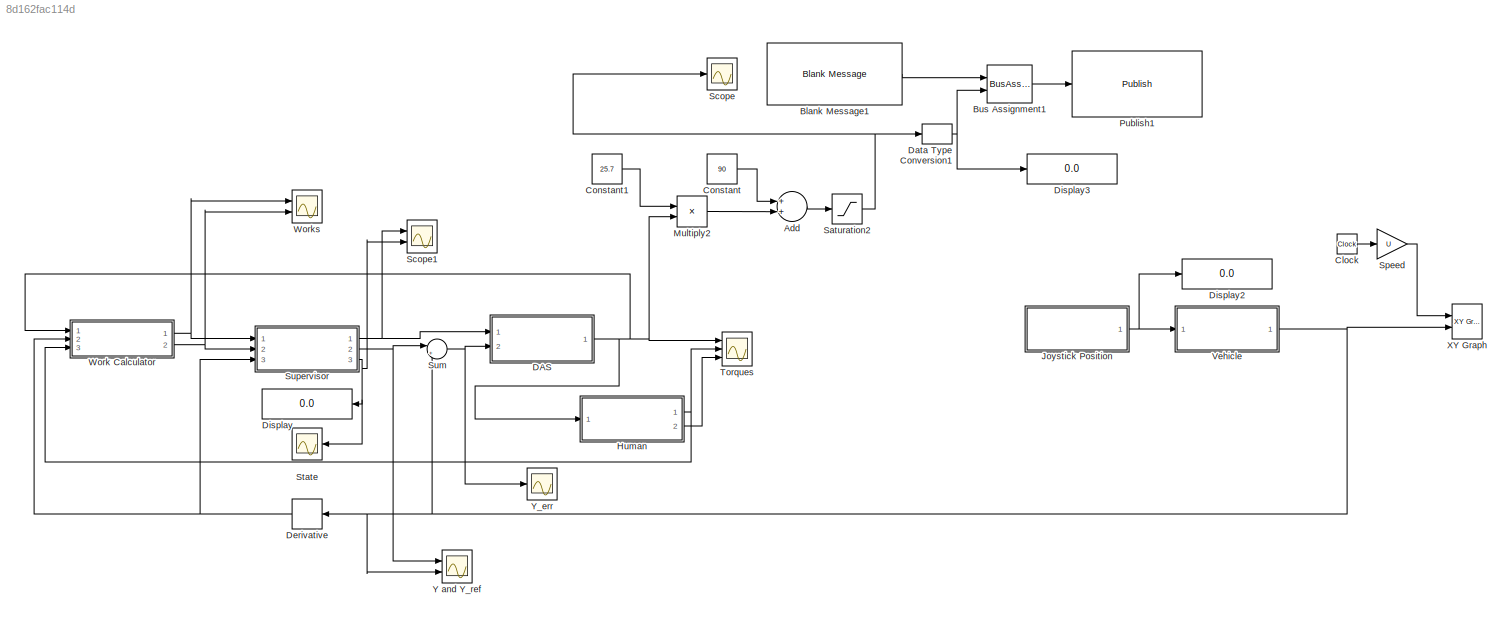
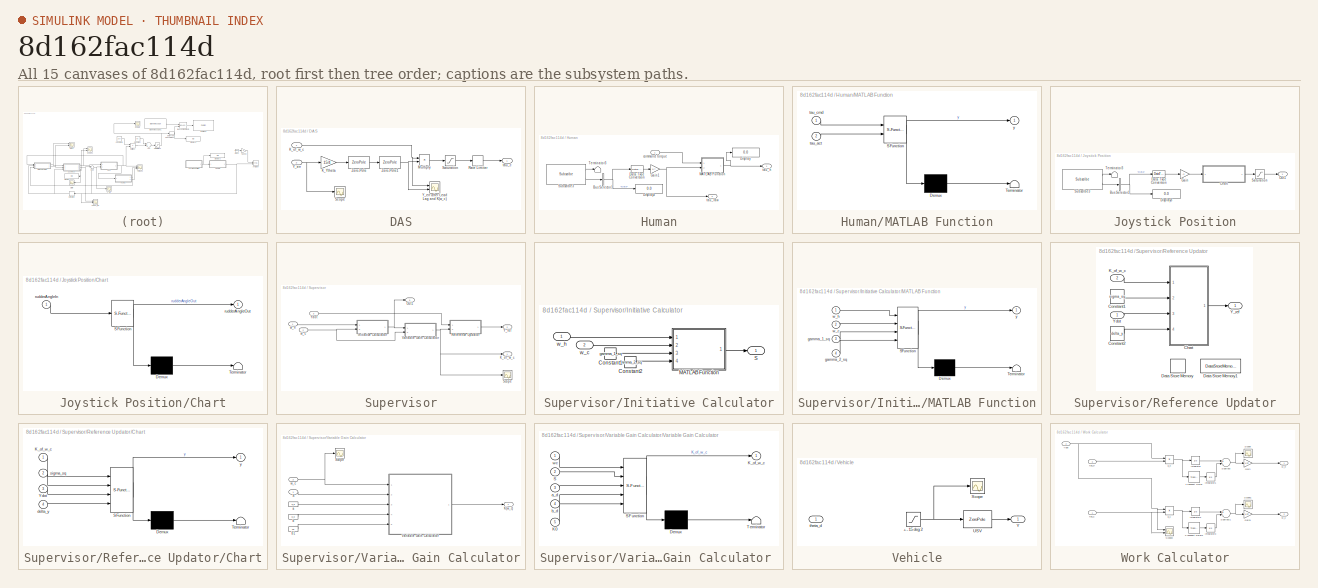
[diagram: thumbnail index - all 15 canvases of the model, root first then tree order]
MODEL slx_8d162fac114d
KIND model
CONFIG AbsTol = auto
CONFIG EnableMultiTasking = off
CONFIG FixedStep = .1
CONFIG MaxStep = auto
CONFIG MinStep = auto
CONFIG RelTol = 1e-3
CONFIG SampleTimeConstraint = Unconstrained
CONFIG Solver = FixedStepAuto
CONFIG SolverName = FixedStepAuto
CONFIG StartTime = 0.0
CONFIG StopTime = 200
BLOCK [Sum] Add
  InputSameDT = off
  OutDataTypeStr = Inherit: Inherit via internal rule
  Ports = [2, 1]
  SaturateOnIntegerOverflow = off
BLOCK [Reference] Blank Message1  REF=robotlib/Blank Message
  Ports = [0, 1]
  SourceBlock = robotlib/Blank Message
  SourceLibraryInfo = This block requires Robotics System Toolbox
  SourceProductBaseCode = RO
  SourceProductName = Robotics System Toolbox
  SourceType = ROS Blank Message
BLOCK [BusAssignment] Bus Assignment1
  AssignedSignals = Data
  Ports = [2, 1]
BLOCK [Clock] Clock
BLOCK [Constant] Constant
  Value = 90
BLOCK [Constant] Constant1
  Value = 25.7
BLOCK [SubSystem] DAS
  Ports = [2, 1]
  RequestExecContextInheritance = off
BLOCK [Gain] DAS/K_Ytheta
  Gain = 15/4
  OutDataTypeStr = Inherit: Inherit via internal rule
  ParamDataTypeStr = Inherit: Inherit via internal rule
  SaturateOnIntegerOverflow = off
BLOCK [Inport] DAS/K_of_w_c 
  IconDisplay = Port number
BLOCK [Product] DAS/Multiply
  InputSameDT = off
  OutDataTypeStr = Inherit: Inherit via internal rule
  Ports = [2, 1]
  RndMeth = Floor
  SaturateOnIntegerOverflow = off
BLOCK [RateLimiter] DAS/Rate Limiter
  FallingSlewLimit = -3
  RisingSlewLimit = 3
  SampleTimeMode = inherited
BLOCK [Saturate] DAS/Saturation
  InputPortMap = u0
  LowerLimit = -5
  Ports = [1, 1]
  UpperLimit = 5
BLOCK [Scope] DAS/Scope
  Floating = off
  NumInputPorts = 1
  Ports = [1]
  ScopeSpecificationString = Simulink.scopes.TimeScopeBlockCfg('CurrentConfiguration', extmgr.ConfigurationSet(extmgr.Configuration('Core','General UI',true),extmgr.Configuration('Core','Source UI',true),extmgr.Configuration('Sources','WiredSimulink',true,'DataLoggingVariableName','ScopeData3'),extmgr.Configuration('Visuals','Time Domain',true,'SerializedDisplays',{struct('MinYLimReal','-0.0666','MaxYLimReal','0.0074','YLabel...<+1409ch>
BLOCK [Inport] DAS/Y_err
  IconDisplay = Port number
  Port = 2
BLOCK [Scope] DAS/Y_err after Lead Lag and K(w_c)
  Floating = off
  NumInputPorts = 2
  Ports = [2]
  ScopeSpecificationString = Simulink.scopes.TimeScopeBlockCfg('CurrentConfiguration', extmgr.ConfigurationSet(extmgr.Configuration('Core','General UI',true),extmgr.Configuration('Core','Source UI',true),extmgr.Configuration('Sources','WiredSimulink',true,'DataLoggingVariableName','ScopeData2'),extmgr.Configuration('Visuals','Time Domain',true,'SerializedDisplays',{struct('MinYLimReal','-1489.32398','MaxYLimReal','3539.7484',...<+1470ch>
BLOCK [ZeroPole] DAS/Zero-Pole
  Gain = [K0]
  Poles = [-a]
  Zeros = [-b]
BLOCK [ZeroPole] DAS/Zero-Pole1
  Gain = [K1]
  Poles = [-a1]
  Zeros = [-b1]
BLOCK [Outport] DAS/tau_c
  IconDisplay = Port number
BLOCK [DataTypeConversion] Data Type Conversion1
  OutDataTypeStr = uint16
  RndMeth = Floor
  SaturateOnIntegerOverflow = off
BLOCK [Derivative] Derivative
BLOCK [Display] Display
  Decimation = 1
  Ports = [1]
BLOCK [Display] Display2
  Decimation = 1
  Ports = [1]
BLOCK [Display] Display3
  Decimation = 1
  Ports = [1]
BLOCK [SubSystem] Human
  Ports = [1, 2]
  RequestExecContextInheritance = off
BLOCK [BusSelector] Human/Bus Selector3
  OutputAsBus = off
  OutputSignals = Data
  Ports = [1, 1]
BLOCK [DataTypeConversion] Human/Data Type Conversion
  OutDataTypeStr = double
  RndMeth = Floor
  SaturateOnIntegerOverflow = off
BLOCK [Display] Human/Display
  Decimation = 1
  Ports = [1]
BLOCK [Display] Human/Display3
  Decimation = 1
  Ports = [1]
BLOCK [Gain] Human/Gain1
  Gain = 0.7
  OutDataTypeStr = Inherit: Inherit via internal rule
  ParamDataTypeStr = Inherit: Inherit via internal rule
  SaturateOnIntegerOverflow = off
BLOCK [SubSystem] Human/MATLAB Function
  ErrorFcn = Stateflow.Translate.translate
  PermitHierarchicalResolution = ExplicitOnly
  Ports = [2, 1]
  RequestExecContextInheritance = off
  SFBlockType = MATLAB Function
  TreatAsAtomicUnit = on
BLOCK [Demux] Human/MATLAB Function/ Demux 
  Outputs = 1
  Ports = [1, 1]
BLOCK [S-Function] Human/MATLAB Function/ SFunction 
  EnableBusSupport = on
  FunctionName = sf_sfun
  PortCounts = [2 2]
  Ports = [2, 2]
  SFcnIsStateOwnerBlock = off
  SFunctionDeploymentMode = off
  Tag = Stateflow S-Function sharedControlBackup 5
BLOCK [Terminator] Human/MATLAB Function/ Terminator 
BLOCK [Inport] Human/MATLAB Function/tau_act
  IconDisplay = Port number
  Port = 2
BLOCK [Inport] Human/MATLAB Function/tau_cmd
  IconDisplay = Port number
BLOCK [Outport] Human/MATLAB Function/y
  IconDisplay = Port number
BLOCK [Reference] Human/Subscribe3  REF=robotlib/Subscribe
  Ports = [0, 2]
  SourceBlock = robotlib/Subscribe
  SourceLibraryInfo = This block requires Robotics System Toolbox
  SourceProductBaseCode = RO
  SourceProductName = Robotics System Toolbox
  SourceType = ROS Subscribe
BLOCK [Terminator] Human/Terminator3
BLOCK [Inport] Human/command torque
  IconDisplay = Port number
BLOCK [Outport] Human/tau_h
  IconDisplay = Port number
BLOCK [Outport] Human/tau_raw
  IconDisplay = Port number
  Port = 2
BLOCK [SubSystem] Joystick Position
  Ports = [0, 1]
  RequestExecContextInheritance = off
BLOCK [BusSelector] Joystick Position/Bus Selector3
  OutputAsBus = off
  OutputSignals = Data
  Ports = [1, 1]
BLOCK [SubSystem] Joystick Position/Chart
  ErrorFcn = Stateflow.Translate.translate
  PermitHierarchicalResolution = ExplicitOnly
  Ports = [1, 1]
  RequestExecContextInheritance = off
  SFBlockType = Chart
  TreatAsAtomicUnit = on
BLOCK [Demux] Joystick Position/Chart/ Demux 
  Outputs = 1
  Ports = [1, 1]
BLOCK [S-Function] Joystick Position/Chart/ SFunction 
  EnableBusSupport = on
  FunctionName = sf_sfun
  PortCounts = [1 2]
  Ports = [1, 2]
  SFcnIsStateOwnerBlock = off
  SFunctionDeploymentMode = off
  Tag = Stateflow S-Function sharedControlBackup 4
BLOCK [Terminator] Joystick Position/Chart/ Terminator 
BLOCK [Inport] Joystick Position/Chart/rudderAngleIn
  IconDisplay = Port number
BLOCK [Outport] Joystick Position/Chart/rudderAngleOut
  IconDisplay = Port number
BLOCK [DataTypeConversion] Joystick Position/Data Type Conversion
  OutDataTypeStr = double
  RndMeth = Floor
  SaturateOnIntegerOverflow = off
BLOCK [Display] Joystick Position/Display3
  Decimation = 1
  Ports = [1]
BLOCK [Gain] Joystick Position/Gain
  Gain = -2
  OutDataTypeStr = Inherit: Inherit via internal rule
  ParamDataTypeStr = Inherit: Inherit via internal rule
  SaturateOnIntegerOverflow = off
BLOCK [Outport] Joystick Position/Out1
  IconDisplay = Port number
BLOCK [Saturate] Joystick Position/Saturation
  InputPortMap = u0
  LowerLimit = -20
  Ports = [1, 1]
  UpperLimit = 20
BLOCK [Reference] Joystick Position/Subscribe3  REF=robotlib/Subscribe
  Ports = [0, 2]
  SourceBlock = robotlib/Subscribe
  SourceLibraryInfo = This block requires Robotics System Toolbox
  SourceProductBaseCode = RO
  SourceProductName = Robotics System Toolbox
  SourceType = ROS Subscribe
BLOCK [Terminator] Joystick Position/Terminator3
BLOCK [Product] Multiply2
  InputSameDT = off
  OutDataTypeStr = Inherit: Inherit via internal rule
  Ports = [2, 1]
  RndMeth = Floor
  SaturateOnIntegerOverflow = off
BLOCK [Reference] Publish1  REF=robotlib/Publish
  Ports = [1]
  SourceBlock = robotlib/Publish
  SourceLibraryInfo = This block requires Robotics System Toolbox
  SourceProductBaseCode = RO
  SourceProductName = Robotics System Toolbox
  SourceType = ROS Publish
BLOCK [Saturate] Saturation2
  InputPortMap = u0
  LowerLimit = 40
  Ports = [1, 1]
  UpperLimit = 140
BLOCK [Scope] Scope
  Floating = off
  NumInputPorts = 1
  Ports = [1]
  ScopeSpecificationString = Simulink.scopes.TimeScopeBlockCfg('CurrentConfiguration', extmgr.ConfigurationSet(extmgr.Configuration('Core','General UI',true),extmgr.Configuration('Core','Source UI',true),extmgr.Configuration('Sources','WiredSimulink',true,'DataLoggingVariableName','ScopeData1'),extmgr.Configuration('Visuals','Time Domain',true,'SerializedDisplays',{struct('MinYLimReal','27.5','MaxYLimReal','152.5','YLabelReal...<+1378ch>
BLOCK [Scope] Scope1
  Floating = off
  NumInputPorts = 2
  Ports = [2]
  ScopeSpecificationString = Simulink.scopes.TimeScopeBlockCfg('CurrentConfiguration', extmgr.ConfigurationSet(extmgr.Configuration('Core','General UI',true),extmgr.Configuration('Core','Source UI',true),extmgr.Configuration('Sources','WiredSimulink',true,'DataLoggingVariableName','ScopeData2'),extmgr.Configuration('Visuals','Time Domain',true,'SerializedDisplays',{struct('MinYLimReal','-0.74913','MaxYLimReal','6.7499','YLabe...<+1450ch>
BLOCK [Gain] Speed
  Gain = U
  OutDataTypeStr = Inherit: Inherit via internal rule
  ParamDataTypeStr = Inherit: Inherit via internal rule
  SaturateOnIntegerOverflow = off
BLOCK [Scope] State
  Floating = off
  NumInputPorts = 1
  Ports = [1]
  ScopeSpecificationString = Simulink.scopes.TimeScopeBlockCfg('CurrentConfiguration', extmgr.ConfigurationSet(extmgr.Configuration('Core','General UI',true),extmgr.Configuration('Core','Source UI',true),extmgr.Configuration('Sources','WiredSimulink',true,'DataLoggingVariableName','ScopeData1'),extmgr.Configuration('Visuals','Time Domain',true,'SerializedDisplays',{struct('MinYLimReal','0.875','MaxYLimReal','2.125','YLabelRea...<+1382ch>
BLOCK [Sum] Sum
  IconShape = round
  InputSameDT = off
  Inputs = |+-
  OutDataTypeStr = Inherit: Inherit via internal rule
  Ports = [2, 1]
  SaturateOnIntegerOverflow = off
BLOCK [SubSystem] Supervisor
  Ports = [3, 3]
  RequestExecContextInheritance = off
BLOCK [SubSystem] Supervisor/Initiative Calculator
  Ports = [2, 1]
  RequestExecContextInheritance = off
BLOCK [Constant] Supervisor/Initiative Calculator/Constant1
  Value = gamma_1_sq
BLOCK [Constant] Supervisor/Initiative Calculator/Constant2
  Value = gamma_2_sq
BLOCK [SubSystem] Supervisor/Initiative Calculator/MATLAB Function
  ErrorFcn = Stateflow.Translate.translate
  PermitHierarchicalResolution = ExplicitOnly
  Ports = [4, 1]
  RequestExecContextInheritance = off
  SFBlockType = MATLAB Function
  TreatAsAtomicUnit = on
BLOCK [Demux] Supervisor/Initiative Calculator/MATLAB Function/ Demux 
  Outputs = 1
  Ports = [1, 1]
BLOCK [S-Function] Supervisor/Initiative Calculator/MATLAB Function/ SFunction 
  EnableBusSupport = on
  FunctionName = sf_sfun
  PortCounts = [4 2]
  Ports = [4, 2]
  SFcnIsStateOwnerBlock = off
  SFunctionDeploymentMode = off
  Tag = Stateflow S-Function sharedControlBackup 2
BLOCK [Terminator] Supervisor/Initiative Calculator/MATLAB Function/ Terminator 
BLOCK [Inport] Supervisor/Initiative Calculator/MATLAB Function/gamma_1_sq
  IconDisplay = Port number
  Port = 3
BLOCK [Inport] Supervisor/Initiative Calculator/MATLAB Function/gamma_2_sq
  IconDisplay = Port number
  Port = 4
BLOCK [Inport] Supervisor/Initiative Calculator/MATLAB Function/w_c
  IconDisplay = Port number
  Port = 2
BLOCK [Inport] Supervisor/Initiative Calculator/MATLAB Function/w_h
  IconDisplay = Port number
BLOCK [Outport] Supervisor/Initiative Calculator/MATLAB Function/y
  IconDisplay = Port number
BLOCK [Outport] Supervisor/Initiative Calculator/S
  IconDisplay = Port number
BLOCK [Inport] Supervisor/Initiative Calculator/w_c 
  IconDisplay = Port number
  Port = 2
BLOCK [Inport] Supervisor/Initiative Calculator/w_h
  IconDisplay = Port number
BLOCK [Outport] Supervisor/K_of_w_c
  IconDisplay = Port number
BLOCK [Outport] Supervisor/Out1
  IconDisplay = Port number
  Port = 3
BLOCK [SubSystem] Supervisor/Reference Updator
  Ports = [2, 1]
  RequestExecContextInheritance = off
BLOCK [SubSystem] Supervisor/Reference Updator/Chart
  ErrorFcn = Stateflow.Translate.translate
  PermitHierarchicalResolution = ExplicitOnly
  Ports = [4, 1]
  RequestExecContextInheritance = off
  SFBlockType = Chart
  TreatAsAtomicUnit = on
BLOCK [Demux] Supervisor/Reference Updator/Chart/ Demux 
  Outputs = 1
  Ports = [1, 1]
BLOCK [S-Function] Supervisor/Reference Updator/Chart/ SFunction 
  EnableBusSupport = on
  FunctionName = sf_sfun
  PortCounts = [4 2]
  Ports = [4, 2]
  SFcnIsStateOwnerBlock = off
  SFunctionDeploymentMode = off
  Tag = Stateflow S-Function sharedControlBackup 1
BLOCK [Terminator] Supervisor/Reference Updator/Chart/ Terminator 
BLOCK [Inport] Supervisor/Reference Updator/Chart/K_of_w_c
  IconDisplay = Port number
BLOCK [Inport] Supervisor/Reference Updator/Chart/Ydot
  IconDisplay = Port number
  Port = 3
BLOCK [Inport] Supervisor/Reference Updator/Chart/delta_y
  IconDisplay = Port number
  Port = 4
BLOCK [Inport] Supervisor/Reference Updator/Chart/sigma_sq
  IconDisplay = Port number
  Port = 2
BLOCK [Outport] Supervisor/Reference Updator/Chart/y
  IconDisplay = Port number
BLOCK [Constant] Supervisor/Reference Updator/Constant1
  Value = sigma_sq
BLOCK [Constant] Supervisor/Reference Updator/Constant2
  Value = delta_y
BLOCK [DataStoreMemory] Supervisor/Reference Updator/Data Store Memory
  DataStoreName = Y_ref
  OutDataTypeStr = int16
  ReadBeforeWriteMsg = warning
  ShowAdditionalParam = off
  SignalType = real
  WriteAfterReadMsg = warning
  WriteAfterWriteMsg = warning
BLOCK [DataStoreMemory] Supervisor/Reference Updator/Data Store Memory1
  DataStoreName = last_switch_time
  OutDataTypeStr = double
  ReadBeforeWriteMsg = warning
  ShowAdditionalParam = off
  SignalType = real
  WriteAfterReadMsg = warning
  WriteAfterWriteMsg = warning
BLOCK [Inport] Supervisor/Reference Updator/K_of_w_c
  IconDisplay = Port number
  Port = 2
BLOCK [Outport] Supervisor/Reference Updator/Y_ref
  IconDisplay = Port number
BLOCK [Inport] Supervisor/Reference Updator/Ydot
  IconDisplay = Port number
BLOCK [Scope] Supervisor/Scope
  Floating = off
  NumInputPorts = 1
  Ports = [1]
  ScopeSpecificationString = Simulink.scopes.TimeScopeBlockCfg('CurrentConfiguration', extmgr.ConfigurationSet(extmgr.Configuration('Core','General UI',true),extmgr.Configuration('Core','Source UI',true),extmgr.Configuration('Sources','WiredSimulink',true,'DataLoggingVariableName','ScopeData1'),extmgr.Configuration('Visuals','Time Domain',true,'SerializedDisplays',{struct('MinYLimReal','-0.05029','MaxYLimReal','0.56114','YLab...<+1432ch>
BLOCK [SubSystem] Supervisor/Variable Gain Calculator
  Ports = [2, 1]
  RequestExecContextInheritance = off
BLOCK [Outport] Supervisor/Variable Gain Calculator/K(w_c)
  IconDisplay = Port number
BLOCK [Inport] Supervisor/Variable Gain Calculator/S
  IconDisplay = Port number
BLOCK [Scope] Supervisor/Variable Gain Calculator/Scope
  Floating = off
  NumInputPorts = 1
  Ports = [1]
  ScopeSpecificationString = Simulink.scopes.TimeScopeBlockCfg('CurrentConfiguration', extmgr.ConfigurationSet(extmgr.Configuration('Core','General UI',true),extmgr.Configuration('Core','Source UI',true),extmgr.Configuration('Sources','WiredSimulink',true,'DataLoggingVariableName','ScopeData3'),extmgr.Configuration('Visuals','Time Domain',true,'SerializedDisplays',{struct('MinYLimReal','-0.01889','MaxYLimReal','0.0021','YLabe...<+1386ch>
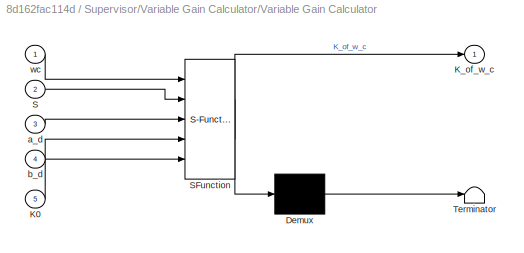
BLOCK [SubSystem] Supervisor/Variable Gain Calculator/Variable Gain Calculator 
  ErrorFcn = Stateflow.Translate.translate
  PermitHierarchicalResolution = ExplicitOnly
  Ports = [5, 1]
  RequestExecContextInheritance = off
  SFBlockType = MATLAB Function
  TreatAsAtomicUnit = on
BLOCK [Demux] Supervisor/Variable Gain Calculator/Variable Gain Calculator / Demux 
  Outputs = 1
  Ports = [1, 1]
BLOCK [S-Function] Supervisor/Variable Gain Calculator/Variable Gain Calculator / SFunction 
  EnableBusSupport = on
  FunctionName = sf_sfun
  PortCounts = [5 2]
  Ports = [5, 2]
  SFcnIsStateOwnerBlock = off
  SFunctionDeploymentMode = off
  Tag = Stateflow S-Function sharedControlBackup 3
BLOCK [Terminator] Supervisor/Variable Gain Calculator/Variable Gain Calculator / Terminator 
BLOCK [Inport] Supervisor/Variable Gain Calculator/Variable Gain Calculator /K0
  IconDisplay = Port number
  Port = 5
BLOCK [Outport] Supervisor/Variable Gain Calculator/Variable Gain Calculator /K_of_w_c
  IconDisplay = Port number
BLOCK [Inport] Supervisor/Variable Gain Calculator/Variable Gain Calculator /S
  IconDisplay = Port number
  Port = 2
BLOCK [Inport] Supervisor/Variable Gain Calculator/Variable Gain Calculator /a_d
  IconDisplay = Port number
  Port = 3
BLOCK [Inport] Supervisor/Variable Gain Calculator/Variable Gain Calculator /b_d
  IconDisplay = Port number
  Port = 4
BLOCK [Inport] Supervisor/Variable Gain Calculator/Variable Gain Calculator /wc
  IconDisplay = Port number
BLOCK [Constant] Supervisor/Variable Gain Calculator/a
  Value = a_d
BLOCK [Constant] Supervisor/Variable Gain Calculator/b
  Value = b_d
BLOCK [Constant] Supervisor/Variable Gain Calculator/b1
  Value = K3
BLOCK [Inport] Supervisor/Variable Gain Calculator/w_c
  IconDisplay = Port number
  Port = 2
BLOCK [Outport] Supervisor/Y_ref
  IconDisplay = Port number
  Port = 2
BLOCK [Inport] Supervisor/Ydot
  IconDisplay = Port number
  Port = 3
BLOCK [Inport] Supervisor/w_c
  IconDisplay = Port number
  Port = 2
BLOCK [Inport] Supervisor/w_h
  IconDisplay = Port number
BLOCK [Scope] Torques
  Floating = off
  NumInputPorts = 3
  Ports = [3]
  ScopeSpecificationString = Simulink.scopes.TimeScopeBlockCfg('CurrentConfiguration', extmgr.ConfigurationSet(extmgr.Configuration('Core','General UI',true),extmgr.Configuration('Core','Source UI',true),extmgr.Configuration('Sources','WiredSimulink',true,'DataLoggingVariableName','ScopeData4'),extmgr.Configuration('Visuals','Time Domain',true,'SerializedDisplays',{struct('MinYLimReal','-12.79911','MaxYLimReal','10.07391','YL...<+1460ch>
BLOCK [SubSystem] Vehicle
  Ports = [1, 1]
  RequestExecContextInheritance = off
BLOCK [Saturate] Vehicle/+- 15 deg 2
  InputPortMap = u0
  LowerLimit = -20
  Ports = [1, 1]
  UpperLimit = 20
BLOCK [Scope] Vehicle/Scope
  Floating = off
  NumInputPorts = 1
  Ports = [1]
  ScopeSpecificationString = Simulink.scopes.TimeScopeBlockCfg('CurrentConfiguration', extmgr.ConfigurationSet(extmgr.Configuration('Core','General UI',true),extmgr.Configuration('Core','Source UI',true),extmgr.Configuration('Sources','WiredSimulink',true,'DataLoggingVariableName','ScopeData1'),extmgr.Configuration('Visuals','Time Domain',true,'SerializedDisplays',{struct('MinYLimReal','-18.75','MaxYLimReal','18.75','YLabelRe...<+1442ch>
BLOCK [ZeroPole] Vehicle/USV
  Gain = [1.5*1e-2]
  Poles = [0 -5/4]
  Zeros = []
BLOCK [Outport] Vehicle/Y
  IconDisplay = Port number
BLOCK [Inport] Vehicle/theta_d
  IconDisplay = Port number
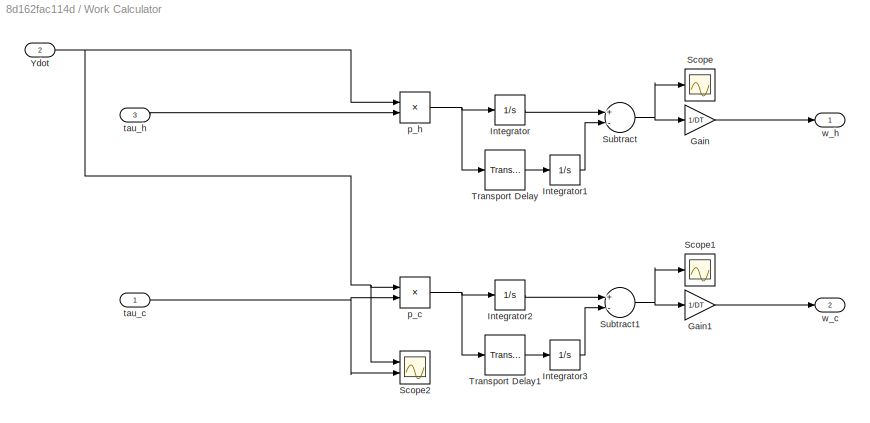
BLOCK [SubSystem] Work Calculator
  Ports = [3, 2]
  RequestExecContextInheritance = off
BLOCK [Gain] Work Calculator/Gain
  Gain = 1/DT
  OutDataTypeStr = Inherit: Inherit via internal rule
  ParamDataTypeStr = Inherit: Inherit via internal rule
  SaturateOnIntegerOverflow = off
BLOCK [Gain] Work Calculator/Gain1
  Gain = 1/DT
  OutDataTypeStr = Inherit: Inherit via internal rule
  ParamDataTypeStr = Inherit: Inherit via internal rule
  SaturateOnIntegerOverflow = off
BLOCK [Integrator] Work Calculator/Integrator
  Ports = [1, 1]
BLOCK [Integrator] Work Calculator/Integrator1
  Ports = [1, 1]
BLOCK [Integrator] Work Calculator/Integrator2
  Ports = [1, 1]
BLOCK [Integrator] Work Calculator/Integrator3
  Ports = [1, 1]
BLOCK [Scope] Work Calculator/Scope
  Floating = off
  NumInputPorts = 1
  Ports = [1]
  ScopeSpecificationString = Simulink.scopes.TimeScopeBlockCfg('CurrentConfiguration', extmgr.ConfigurationSet(extmgr.Configuration('Core','General UI',true),extmgr.Configuration('Core','Source UI',true),extmgr.Configuration('Sources','WiredSimulink',true,'DataLoggingVariableName','ScopeData2'),extmgr.Configuration('Visuals','Time Domain',true,'SerializedDisplays',{struct('MinYLimReal','-1.00000','MaxYLimReal','1.00000','YLab...<+1395ch>
BLOCK [Scope] Work Calculator/Scope1
  Floating = off
  NumInputPorts = 1
  Ports = [1]
  ScopeSpecificationString = Simulink.scopes.TimeScopeBlockCfg('CurrentConfiguration', extmgr.ConfigurationSet(extmgr.Configuration('Core','General UI',true),extmgr.Configuration('Core','Source UI',true),extmgr.Configuration('Sources','WiredSimulink',true,'DataLoggingVariableName','ScopeData3'),extmgr.Configuration('Visuals','Time Domain',true,'SerializedDisplays',{struct('MinYLimReal','-0.07558','MaxYLimReal','0.0084','YLabe...<+1396ch>
BLOCK [Scope] Work Calculator/Scope2
  Floating = off
  NumInputPorts = 2
  Ports = [2]
  ScopeSpecificationString = Simulink.scopes.TimeScopeBlockCfg('CurrentConfiguration', extmgr.ConfigurationSet(extmgr.Configuration('Core','General UI',true),extmgr.Configuration('Core','Source UI',true),extmgr.Configuration('Sources','WiredSimulink',true,'DataLoggingVariableName','ScopeData2'),extmgr.Configuration('Visuals','Time Domain',true,'SerializedDisplays',{struct('MinYLimReal','-5.37539','MaxYLimReal','4.48615','YLab...<+1397ch>
BLOCK [Sum] Work Calculator/Subtract
  InputSameDT = off
  Inputs = +-
  OutDataTypeStr = Inherit: Inherit via internal rule
  Ports = [2, 1]
  SaturateOnIntegerOverflow = off
BLOCK [Sum] Work Calculator/Subtract1
  InputSameDT = off
  Inputs = +-
  OutDataTypeStr = Inherit: Inherit via internal rule
  Ports = [2, 1]
  SaturateOnIntegerOverflow = off
BLOCK [TransportDelay] Work Calculator/Transport Delay
  DelayTime = DT
  Ports = [1, 1]
BLOCK [TransportDelay] Work Calculator/Transport Delay1
  DelayTime = DT
  Ports = [1, 1]
BLOCK [Inport] Work Calculator/Ydot
  IconDisplay = Port number
  Port = 2
BLOCK [Product] Work Calculator/p_c
  InputSameDT = off
  OutDataTypeStr = Inherit: Inherit via internal rule
  Ports = [2, 1]
  RndMeth = Floor
  SaturateOnIntegerOverflow = off
BLOCK [Product] Work Calculator/p_h
  InputSameDT = off
  OutDataTypeStr = Inherit: Inherit via internal rule
  Ports = [2, 1]
  RndMeth = Floor
  SaturateOnIntegerOverflow = off
BLOCK [Inport] Work Calculator/tau_c
  IconDisplay = Port number
BLOCK [Inport] Work Calculator/tau_h
  IconDisplay = Port number
  Port = 3
BLOCK [Outport] Work Calculator/w_c
  IconDisplay = Port number
  Port = 2
BLOCK [Outport] Work Calculator/w_h
  IconDisplay = Port number
BLOCK [Scope] Works
  Floating = off
  NumInputPorts = 2
  Ports = [2]
  ScopeSpecificationString = Simulink.scopes.TimeScopeBlockCfg('CurrentConfiguration', extmgr.ConfigurationSet(extmgr.Configuration('Core','General UI',true),extmgr.Configuration('Core','Source UI',true),extmgr.Configuration('Sources','WiredSimulink',true),extmgr.Configuration('Visuals','Time Domain',true,'SerializedDisplays',{struct('MinYLimReal','-0.4632','MaxYLimReal','0.60758','YLabelReal','','MinYLimMag','0.00000','MaxYL...<+1369ch>
BLOCK [Reference] XY Graph  REF=simulink/Sinks/XY Graph
  Ports = [2]
  SourceBlock = simulink/Sinks/XY Graph
  SourceProductBaseCode = SL
  SourceProductName = Simulink
  SourceType = XY scope.
BLOCK [Scope] Y and Y_ref
  Floating = off
  NumInputPorts = 2
  Ports = [2]
  ScopeSpecificationString = Simulink.scopes.TimeScopeBlockCfg('CurrentConfiguration', extmgr.ConfigurationSet(extmgr.Configuration('Core','General UI',true),extmgr.Configuration('Core','Source UI',true),extmgr.Configuration('Sources','WiredSimulink',true,'DataLoggingVariableName','ScopeData2'),extmgr.Configuration('Visuals','Time Domain',true,'SerializedDisplays',{struct('MinYLimReal','-3.50013','MaxYLimReal','2.77503','YLab...<+1475ch>
BLOCK [Scope] Y_err
  Floating = off
  NumInputPorts = 1
  Ports = [1]
  ScopeSpecificationString = Simulink.scopes.TimeScopeBlockCfg('CurrentConfiguration', extmgr.ConfigurationSet(extmgr.Configuration('Core','General UI',true),extmgr.Configuration('Core','Source UI',true),extmgr.Configuration('Sources','WiredSimulink',true,'DataLoggingVariableName','ScopeData1'),extmgr.Configuration('Visuals','Time Domain',true,'SerializedDisplays',{struct('MinYLimReal','-18.46282','MaxYLimReal','128.87368','Y...<+1396ch>
LINE Add:1 -> Saturation2:1
LINE Blank Message1:1 -> Bus Assignment1:1
LINE Bus Assignment1:1 -> Publish1:1
LINE Clock:1 -> Speed:1
LINE Constant1:1 -> Multiply2:1
LINE Constant:1 -> Add:1
LINE DAS/K_Ytheta:1 -> DAS/Zero-Pole:1
NET DAS/K_of_w_c :1 -> DAS/Multiply:1, DAS/Y_err after Lead Lag and K(w_c):1
LINE DAS/Multiply:1 -> DAS/Saturation:1
LINE DAS/Rate Limiter:1 -> DAS/tau_c:1
LINE DAS/Saturation:1 -> DAS/Rate Limiter:1
NET DAS/Y_err:1 -> DAS/K_Ytheta:1, DAS/Scope:1
NET DAS/Zero-Pole1:1 -> DAS/Multiply:2, DAS/Y_err after Lead Lag and K(w_c):2
LINE DAS/Zero-Pole:1 -> DAS/Zero-Pole1:1
NET DAS:1 -> Human:1, Multiply2:2, Torques:1, Work Calculator:1
NET Data Type Conversion1:1 -> Bus Assignment1:2, Display3:1
NET Derivative:1 -> Supervisor:3, Work Calculator:2
NET Human/Bus Selector3:1 -> Human/Data Type Conversion:1, Human/Display3:1
LINE Human/Data Type Conversion:1 -> Human/Gain1:1
NET Human/Gain1:1 -> Human/MATLAB Function:2, Human/tau_raw:1
NET Human/MATLAB Function:1 -> Human/Display:1, Human/tau_h:1
LINE Human/Subscribe3:1 -> Human/Terminator3:1
LINE Human/Subscribe3:2 -> Human/Bus Selector3:1
LINE Human/command torque:1 -> Human/MATLAB Function:1
NET Human:1 -> Torques:2, Work Calculator:3
LINE Human:2 -> Torques:3
NET Joystick Position/Bus Selector3:1 -> Joystick Position/Data Type Conversion:1, Joystick Position/Display3:1
LINE Joystick Position/Chart:1 -> Joystick Position/Saturation:1
LINE Joystick Position/Data Type Conversion:1 -> Joystick Position/Gain:1
LINE Joystick Position/Gain:1 -> Joystick Position/Chart:1
LINE Joystick Position/Saturation:1 -> Joystick Position/Out1:1
LINE Joystick Position/Subscribe3:1 -> Joystick Position/Terminator3:1
LINE Joystick Position/Subscribe3:2 -> Joystick Position/Bus Selector3:1
NET Joystick Position:1 -> Display2:1, Vehicle:1
LINE Multiply2:1 -> Add:2
NET Saturation2:1 -> Data Type Conversion1:1, Scope:1
LINE Speed:1 -> XY Graph:1
NET Sum:1 -> DAS:2, Y_err:1
LINE Supervisor/Initiative Calculator/Constant1:1 -> Supervisor/Initiative Calculator/MATLAB Function:3
LINE Supervisor/Initiative Calculator/Constant2:1 -> Supervisor/Initiative Calculator/MATLAB Function:4
LINE Supervisor/Initiative Calculator/MATLAB Function:1 -> Supervisor/Initiative Calculator/S:1
LINE Supervisor/Initiative Calculator/w_c :1 -> Supervisor/Initiative Calculator/MATLAB Function:2
LINE Supervisor/Initiative Calculator/w_h:1 -> Supervisor/Initiative Calculator/MATLAB Function:1
NET Supervisor/Initiative Calculator:1 -> Supervisor/Out1:1, Supervisor/Variable Gain Calculator:1
LINE Supervisor/Reference Updator/Chart:1 -> Supervisor/Reference Updator/Y_ref:1
LINE Supervisor/Reference Updator/Constant1:1 -> Supervisor/Reference Updator/Chart:2
LINE Supervisor/Reference Updator/Constant2:1 -> Supervisor/Reference Updator/Chart:4
LINE Supervisor/Reference Updator/K_of_w_c:1 -> Supervisor/Reference Updator/Chart:1
LINE Supervisor/Reference Updator/Ydot:1 -> Supervisor/Reference Updator/Chart:3
LINE Supervisor/Reference Updator:1 -> Supervisor/Y_ref:1
LINE Supervisor/Variable Gain Calculator/S:1 -> Supervisor/Variable Gain Calculator/Variable Gain Calculator :2
LINE Supervisor/Variable Gain Calculator/Variable Gain Calculator :1 -> Supervisor/Variable Gain Calculator/K(w_c):1
LINE Supervisor/Variable Gain Calculator/a:1 -> Supervisor/Variable Gain Calculator/Variable Gain Calculator :3
LINE Supervisor/Variable Gain Calculator/b1:1 -> Supervisor/Variable Gain Calculator/Variable Gain Calculator :5
LINE Supervisor/Variable Gain Calculator/b:1 -> Supervisor/Variable Gain Calculator/Variable Gain Calculator :4
NET Supervisor/Variable Gain Calculator/w_c:1 -> Supervisor/Variable Gain Calculator/Scope:1, Supervisor/Variable Gain Calculator/Variable Gain Calculator :1
NET Supervisor/Variable Gain Calculator:1 -> Supervisor/K_of_w_c:1, Supervisor/Reference Updator:2, Supervisor/Scope:1
LINE Supervisor/Ydot:1 -> Supervisor/Reference Updator:1
NET Supervisor/w_c:1 -> Supervisor/Initiative Calculator:2, Supervisor/Variable Gain Calculator:2
LINE Supervisor/w_h:1 -> Supervisor/Initiative Calculator:1
NET Supervisor:1 -> DAS:1, Scope1:1
NET Supervisor:2 -> Sum:1, Y and Y_ref:1
NET Supervisor:3 -> Display:1, Scope1:2, State:1
NET Vehicle/+- 15 deg 2:1 -> Vehicle/Scope:1, Vehicle/USV:1
LINE Vehicle/USV:1 -> Vehicle/Y:1
NET Vehicle:1 -> Derivative:1, Sum:2, XY Graph:2, Y and Y_ref:2
LINE Work Calculator/Gain1:1 -> Work Calculator/w_c:1
LINE Work Calculator/Gain:1 -> Work Calculator/w_h:1
LINE Work Calculator/Integrator1:1 -> Work Calculator/Subtract:2
LINE Work Calculator/Integrator2:1 -> Work Calculator/Subtract1:1
LINE Work Calculator/Integrator3:1 -> Work Calculator/Subtract1:2
LINE Work Calculator/Integrator:1 -> Work Calculator/Subtract:1
NET Work Calculator/Subtract1:1 -> Work Calculator/Gain1:1, Work Calculator/Scope1:1
NET Work Calculator/Subtract:1 -> Work Calculator/Gain:1, Work Calculator/Scope:1
LINE Work Calculator/Transport Delay1:1 -> Work Calculator/Integrator3:1
LINE Work Calculator/Transport Delay:1 -> Work Calculator/Integrator1:1
NET Work Calculator/Ydot:1 -> Work Calculator/Scope2:1, Work Calculator/p_c:1, Work Calculator/p_h:1
NET Work Calculator/p_c:1 -> Work Calculator/Integrator2:1, Work Calculator/Transport Delay1:1
NET Work Calculator/p_h:1 -> Work Calculator/Integrator:1, Work Calculator/Transport Delay:1
NET Work Calculator/tau_c:1 -> Work Calculator/Scope2:2, Work Calculator/p_c:2
LINE Work Calculator/tau_h:1 -> Work Calculator/p_h:2
NET Work Calculator:1 -> Supervisor:1, Works:1
NET Work Calculator:2 -> Supervisor:2, Works:2
note: NET lines group one-source signal fan-out (src -> all destinations, sorted); 1:1 wires keep LINE
CHART Supervisor/Reference Updator/Chart states=8 transitions=9
  STATE_LABEL 'This system will check if there should be a lane changed\nbased on K(w_c) vs siqma^2.  If a lane change is required,\ncheck to see if allowed based on time since last lane change'
  STATE_LABEL '<!DOCTYPE HTML PUBLIC "-//W3C//DTD HTML 4.0//EN" "http://www.w3.org/TR/REC-html40/strict.dtd">\n<html><head><meta name="qrichtext" content="1" /><style type="text/css">\np, li { white-space: pre-wrap; }\n</style></head><body style=" font-family:\'Helvetica\'; font-size:12px; font-weight:400; font-style:normal;">\n<p style=" margin-top:0px; margin-bottom:0px; margin-left:0px; margin-right:0px; -qt-block-...<+1198ch>'
  STATE_LABEL 'add\nentry:Y_ref=Y_ref+delta_y;\ny=Y_ref;\nset_last_switch_time;'
  STATE_LABEL 'checkForChange\nentry: change_flag=time_check(5);'
  STATE_LABEL 'subtract\nentry:Y_ref=Y_ref-delta_y;\ny=Y_ref;\nset_last_switch_time;'
  STATE_LABEL 'T_min=5'
  STATE_LABEL 'change=time_check(t_min)'
  STATE_LABEL "SCRIPT:\nfunction change=time_check(t_min)\nglobal last_switch_time\ncoder.extrinsic('get_param');\ntemp=0;\ntemp=get_param('sharedControlWOControllers','SimulationTime');\nchange=(temp-last_switch_time)>t_min;"
  STATE_LABEL 'set_last_switch_time'
  STATE_LABEL "SCRIPT:\nfunction set_last_switch_time\nglobal last_switch_time\ncoder.extrinsic('get_param')\nlast_switch_time=get_param('sharedControlWOControllers','SimulationTime');"
CHART Supervisor/Initiative Calculator/MATLAB Function states=1 transitions=1
  STATE_LABEL 'eML_blk_kernel()'
  STATE_LABEL "SCRIPT:\nfunction y = fcn(w_h, w_c, gamma_1_sq, gamma_2_sq)\n\nif(w_h >= -gamma_1_sq && w_c >= -gamma_2_sq)\n    S=1;\nelseif(w_h >= -gamma_1_sq && w_c < -gamma_2_sq)\n    S=2;\nelseif(w_h < -gamma_1_sq && w_c >= -gamma_2_sq)\n    S=3;\nelseif(w_h < -gamma_1_sq && w_c < -gamma_2_sq)\n    S=4;\nelse\n    error('bad state assignment');\nend\ny = S;\n"
CHART Supervisor/Variable Gain Calculator/Variable Gain Calculator
 states=1 transitions=1
  STATE_LABEL 'eML_blk_kernel()'
  STATE_LABEL 'SCRIPT:\nfunction K_of_w_c = fcn(wc, S, a_d, b_d, K0)\n\nif S == 2    \n    K_of_w_c = K0/(1 + exp(-a_d*wc + b_d));\nelse\n    K_of_w_c = K0;\nend\n\nreturn'
CHART Joystick Position/Chart states=2 transitions=4
  STATE_LABEL 'zero_band\nentry:\nrudderAngleOut=0;'
  STATE_LABEL 'normal_operation\nentry:\nrudderAngleOut=rudderAngleIn;'
CHART Human/MATLAB Function states=1 transitions=1
  STATE_LABEL 'eML_blk_kernel()'
  STATE_LABEL 'SCRIPT:\nfunction y = fcn(tau_cmd, tau_act)\nif (tau_act>=0&&tau_act<4) || (tau_act<=0&&tau_act>-4)\n    y=0;\nelse\n    y=tau_act-tau_cmd;\nend\n'
